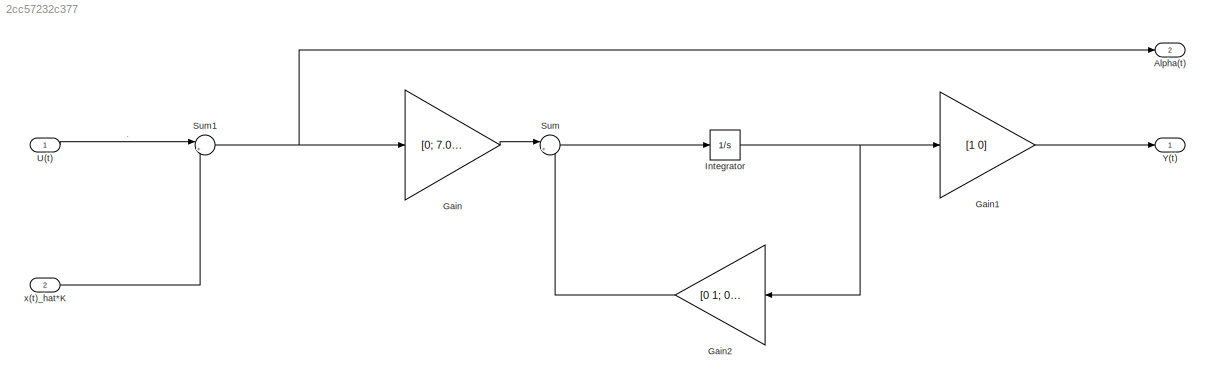
MODEL slx_2cc57232c377
KIND model
CONFIG AbsTol = auto
CONFIG EnableMultiTasking = off
CONFIG FixedStep = auto
CONFIG MaxStep = auto
CONFIG MinStep = auto
CONFIG RelTol = 1e-3
CONFIG SampleTimeConstraint = Unconstrained
CONFIG SolverName = ode8
CONFIG StartTime = 0.0
CONFIG StopTime = 10.0
WORKSPACE source: mxarray member
WORKSPACE A: Simulink.Parameter (value not decoded)
WORKSPACE B: Simulink.Parameter (value not decoded)
WORKSPACE C: Simulink.Parameter (value not decoded)
WORKSPACE x0: Simulink.Parameter (value not decoded)
BLOCK [Outport] Alpha(t)
  Port = 2
  VectorParamsAs1DForOutWhenUnconnected = off
BLOCK [Gain] Gain
  Gain = [0; 7.007]
  Multiplication = Matrix(K*u) (u vector)
BLOCK [Gain] Gain1
  Gain = [1 0]
  Multiplication = Matrix(K*u) (u vector)
BLOCK [Gain] Gain2
  Gain = [0 1; 0 0]
  Multiplication = Matrix(K*u) (u vector)
  NameLocation = top
BLOCK [Integrator] Integrator
  InitialCondition = x0
  Ports = [1, 1]
BLOCK [Sum] Sum
  Inputs = |++
  Ports = [2, 1]
BLOCK [Sum] Sum1
  Inputs = |+-
  Ports = [2, 1]
BLOCK [Inport] U(t)
BLOCK [Outport] Y(t)
  VectorParamsAs1DForOutWhenUnconnected = off
BLOCK [Inport] x(t)_hat*K
  Port = 2
LINE Gain1:1 -> Y(t):1
LINE Gain2:1 -> Sum:2
LINE Gain:1 -> Sum:1
NET Integrator:1 -> Gain1:1, Gain2:1
NET Sum1:1 -> Alpha(t):1, Gain:1
LINE Sum:1 -> Integrator:1
LINE U(t):1 -> Sum1:1
LINE x(t)_hat*K:1 -> Sum1:2
note: NET lines group one-source signal fan-out (src -> all destinations, sorted); 1:1 wires keep LINE
